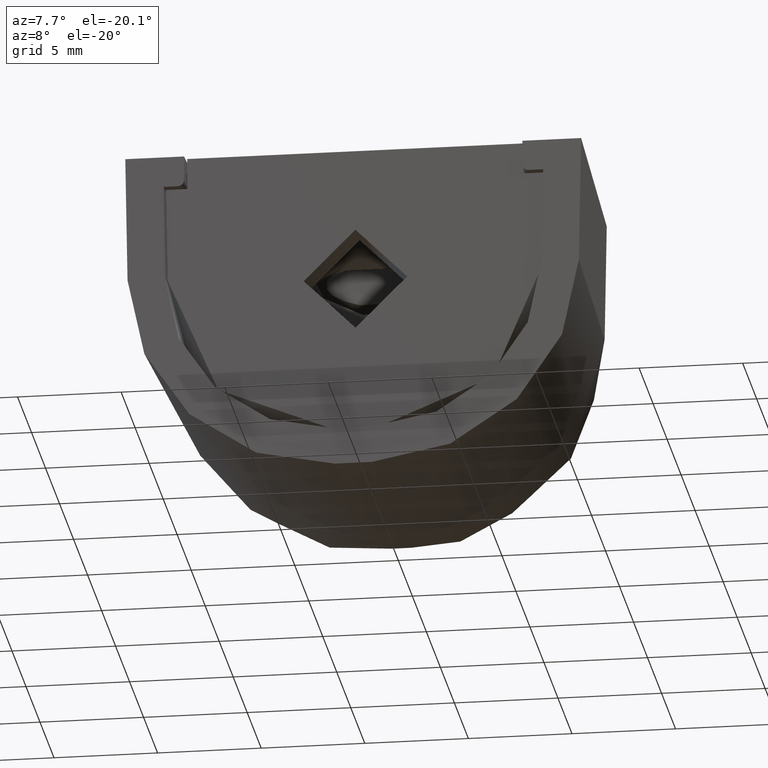
[diagram: clean part render]
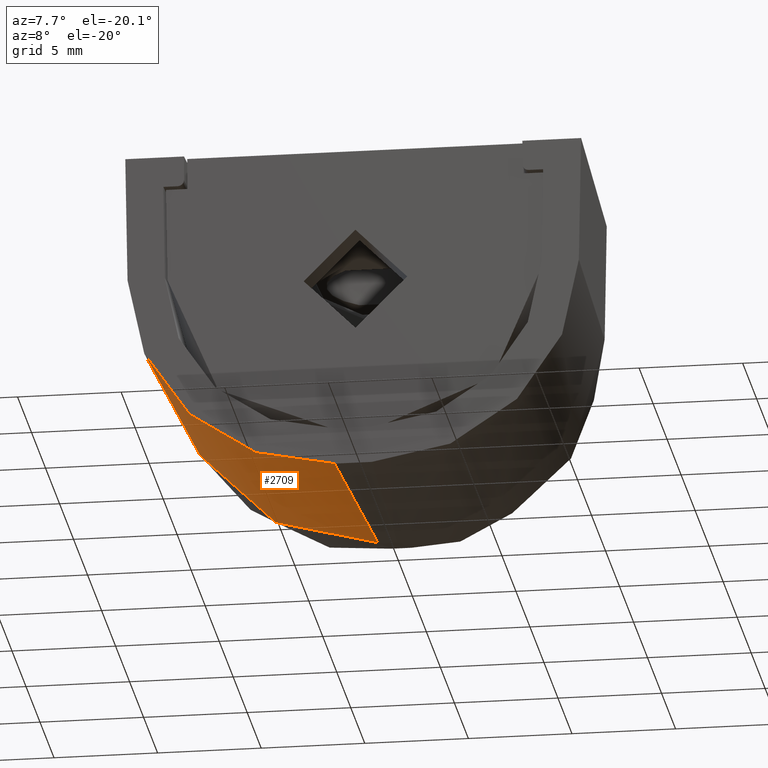
[diagram: same view with one face highlighted and labeled with its STEP entity id]
A machine part, auxiliary view. The second image highlights one B-rep face of the part: STEP entity #2709.
In plain terms, the highlighted cylindrical surface (partial cylindrical patch) has radius 10 mm, axis along (0.0343, 0.9988, 0.0349).
Its self-contained STEP definition (entity closure, byte-faithful):
#162=CIRCLE('',#2900,10.);
#271=CYLINDRICAL_SURFACE('',#2899,10.);
#352=FACE_OUTER_BOUND('',#519,.T.);
#519=EDGE_LOOP('',(#1938,#1939,#1940,#1941));
#717=LINE('',#4237,#929);
#719=LINE('',#4242,#931);
#929=VECTOR('',#3276,12.3637869055601);
#931=VECTOR('',#3282,12.3637869055701);
#1100=ELLIPSE('',#2859,10.0119782529506,10.);
#1134=VERTEX_POINT('',#3952);
#1135=VERTEX_POINT('',#3954);
#1178=VERTEX_POINT('',#4236);
#1179=VERTEX_POINT('',#4240);
#1396=EDGE_CURVE('',#1134,#1135,#1100,.T.);
#1463=EDGE_CURVE('',#1134,#1178,#717,.T.);
#1465=EDGE_CURVE('',#1179,#1178,#162,.T.);
#1466=EDGE_CURVE('',#1135,#1179,#719,.T.);
#1938=ORIENTED_EDGE('',*,*,#1396,.F.);
#1939=ORIENTED_EDGE('',*,*,#1463,.T.);
#1940=ORIENTED_EDGE('',*,*,#1465,.F.);
#1941=ORIENTED_EDGE('',*,*,#1466,.F.);
#2709=ADVANCED_FACE('',(#352),#271,.T.);
#2859=AXIS2_PLACEMENT_3D('',#3955,#3161,#3162);
#2899=AXIS2_PLACEMENT_3D('',#4239,#3278,#3279);
#2900=AXIS2_PLACEMENT_3D('',#4241,#3280,#3281);
#3161=DIRECTION('center_axis',(0.,-1.,0.));
#3162=DIRECTION('ref_axis',(-0.700909264299796,0.,-0.713250449154235));
#3276=DIRECTION('',(0.0342754885582405,0.998803607773814,0.0348789905546005));
#3278=DIRECTION('center_axis',(0.0342754885582405,0.998803607773814,0.0348789905546005));
#3279=DIRECTION('ref_axis',(2.14455189717633E-16,0.0348994967025061,-0.999390827019096));
#3280=DIRECTION('center_axis',(0.0342754885582405,0.998803607773814,0.0348789905546005));
#3281=DIRECTION('ref_axis',(2.14455189717633E-16,0.0348994967025061,-0.999390827019096));
#3282=DIRECTION('',(0.0342754885582405,0.998803607773814,0.0348789905546005));
#3952=CARTESIAN_POINT('',(-10.89211880576,0.,-6.180509478837));
#3954=CARTESIAN_POINT('',(-0.8997326562026,0.,-16.));
#3955=CARTESIAN_POINT('Origin',(-0.88775635484978,0.,-5.99390455701212));
#4236=CARTESIAN_POINT('',(-10.46834396914,12.34899496702,-5.749273072139));
#4237=CARTESIAN_POINT('',(-10.89211880576,0.,-6.180509478837));
#4239=CARTESIAN_POINT('Origin',(-1.871927400898,-28.6792,-6.99540428942));
#4240=CARTESIAN_POINT('',(-0.4759578195844,12.34899496703,-15.5687635933));
#4241=CARTESIAN_POINT('Origin',(-0.4759578195844,12.,-5.574855323111));
#4242=CARTESIAN_POINT('',(-0.8997326562026,0.,-16.));